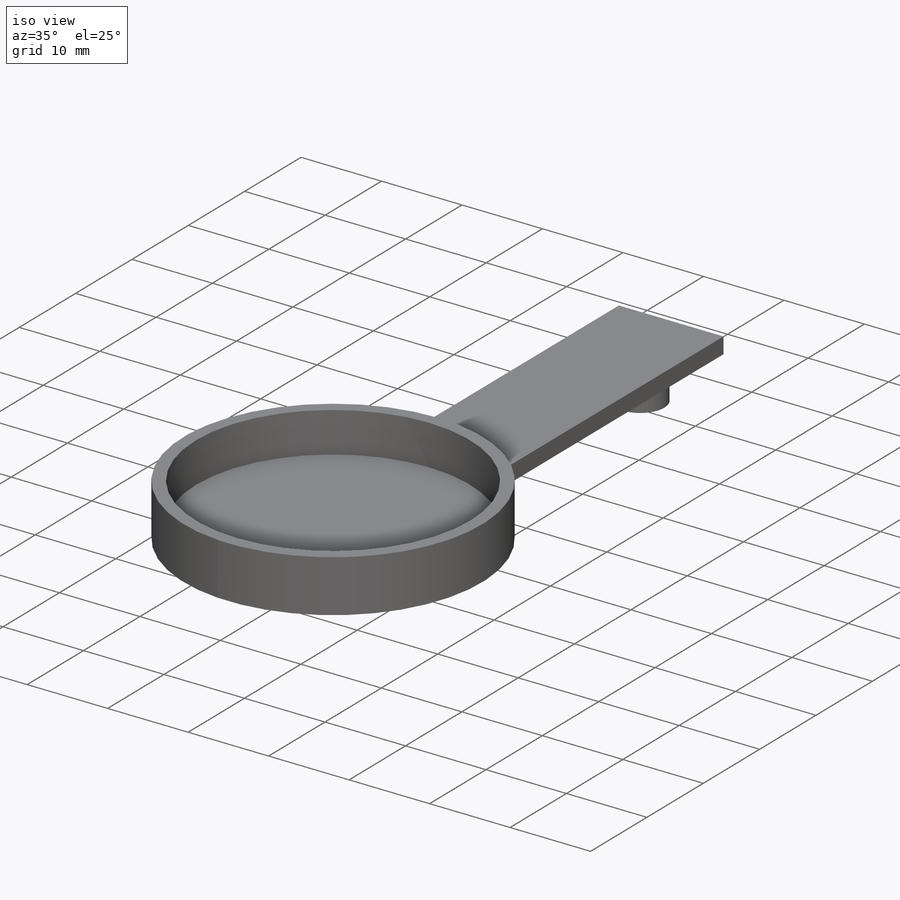
[diagram: iso view]
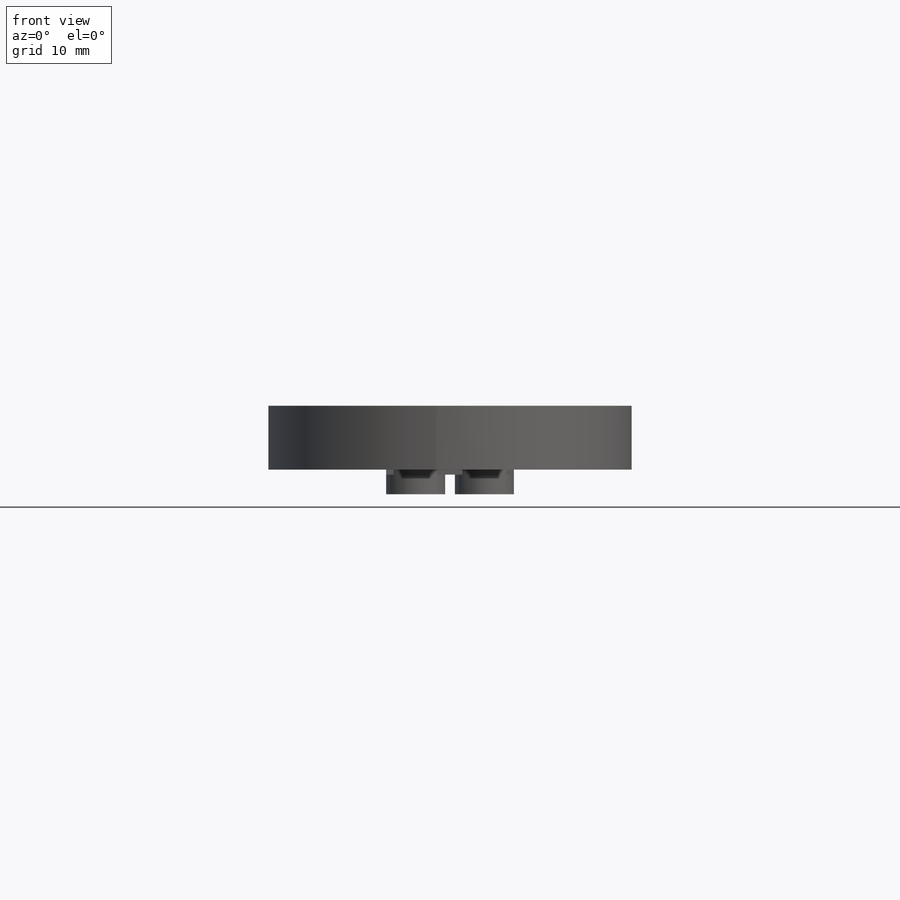
[diagram: front view]
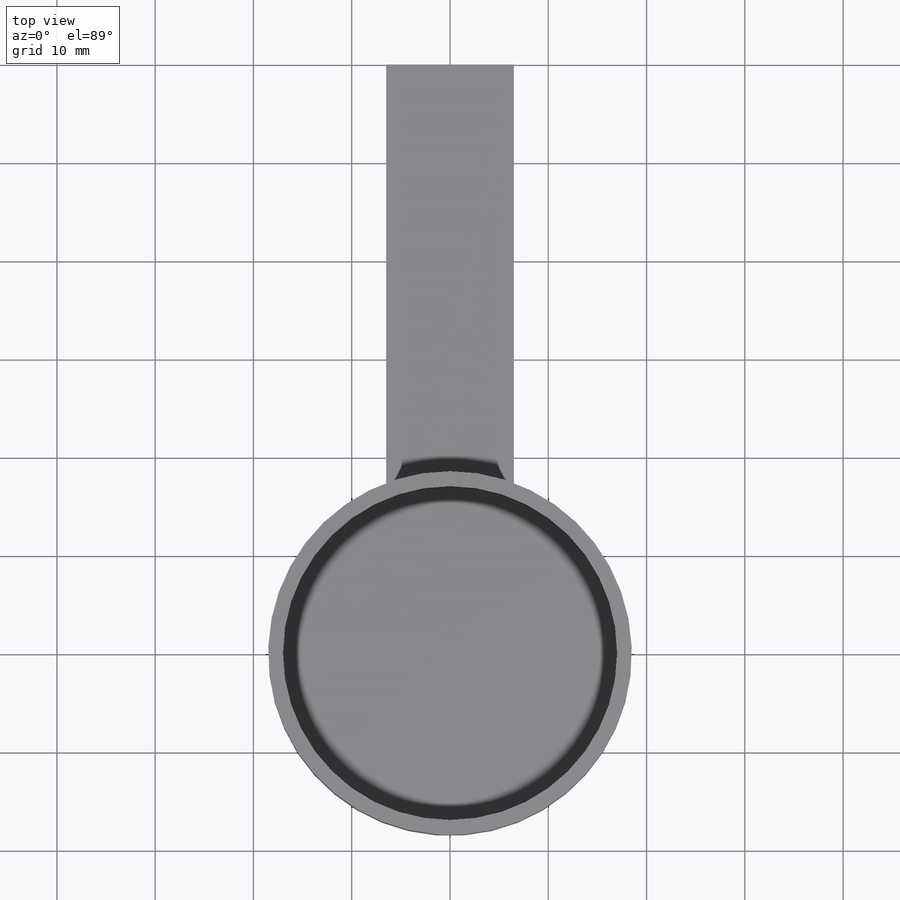
[diagram: top view]
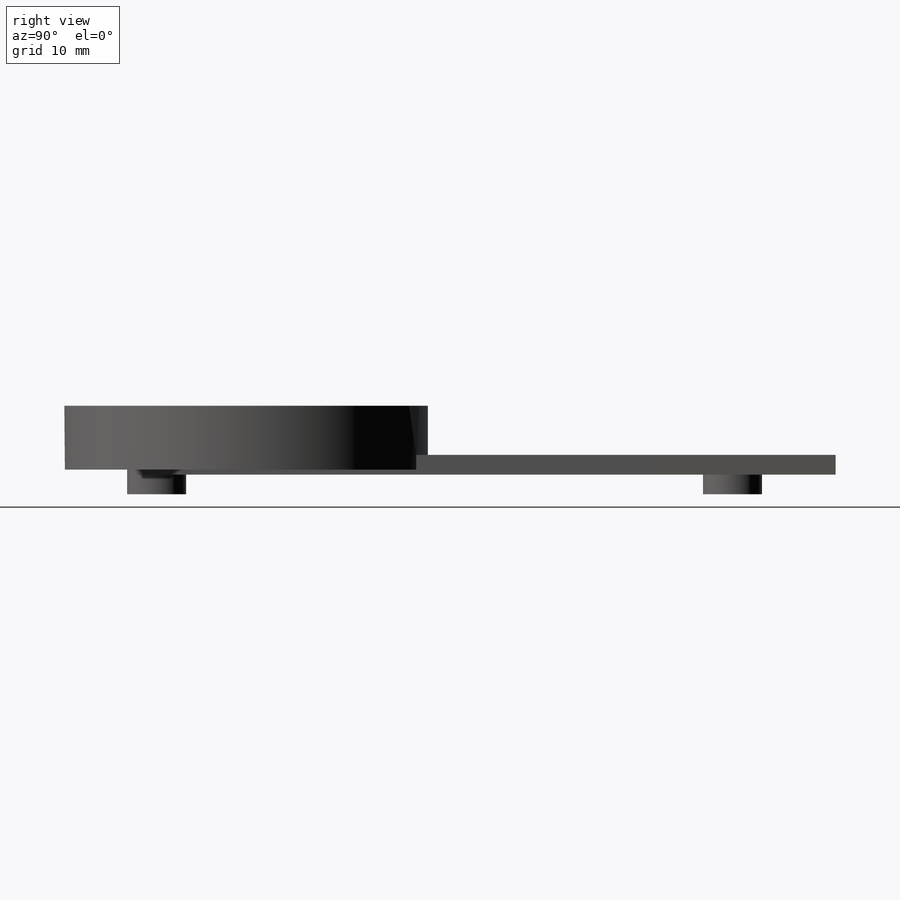
[diagram: right view]
SOLIDWORKS PART (.sldprt)
format: sldprt  version: not decoded by parser v0  size: 200,192 bytes
history: native  units: mm
features: sketch x6, extrude x4, cut_extrude x2, material x1 (+12 scaffold rows collapsed)
feature tree (25):
  scaffold x12  (default folders/planes/origin — collapsed)
  material  "Material <not specified>"
  sketch  "Sketch1"  dims[D1=18.0mm]
  extrude  "Boss-Extrude1"  Depth=1.5mm
  sketch  "Sketch2"  dims[D1=3.649mm]
  extrude  "Boss-Extrude2"  Depth=5mm
  sketch  "Sketch3"  dims[D1=11.0mm D2=60.0mm D3=6.5mm D4=6.5mm]
  extrude  "Boss-Extrude3"  Depth=0.5mm
  sketch  "Sketch4"  dims[c1.D3=2.0mm c1.D5=~2.566811mm c1.D1=3.0mm c1.D2=2.0mm c2.D3=3.0mm c2.D4=10.5mm]
  extrude  "Boss-Extrude4"  Depth=2mm
  sketch  "Sketch6"  dims[D1=2.0mm D2=2.0mm]
  cut_extrude  "Cut-Extrude1"  Depth=2mm
  sketch  "Sketch7"  dims[D2=0.5702mm D1=2.0mm]
  cut_extrude  "Cut-Extrude2"  Depth=3mm
decode coverage: 12 of 12 modeling features carry decoded parameters
note: ~ marks probable driven/reference dimensions
note: suppression state not decoded; provenance and decode notes live in map.json
